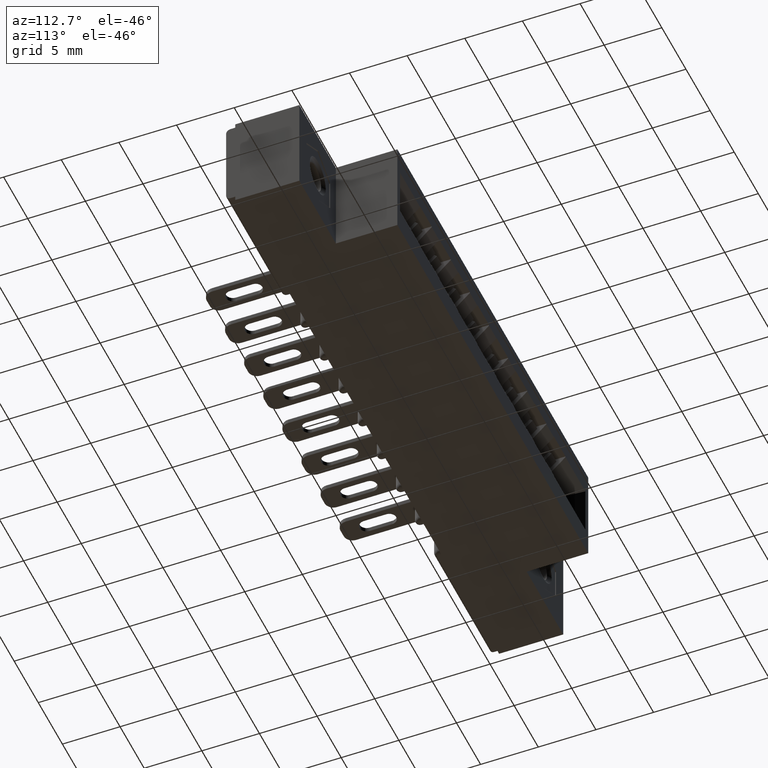
[diagram: clean part render]
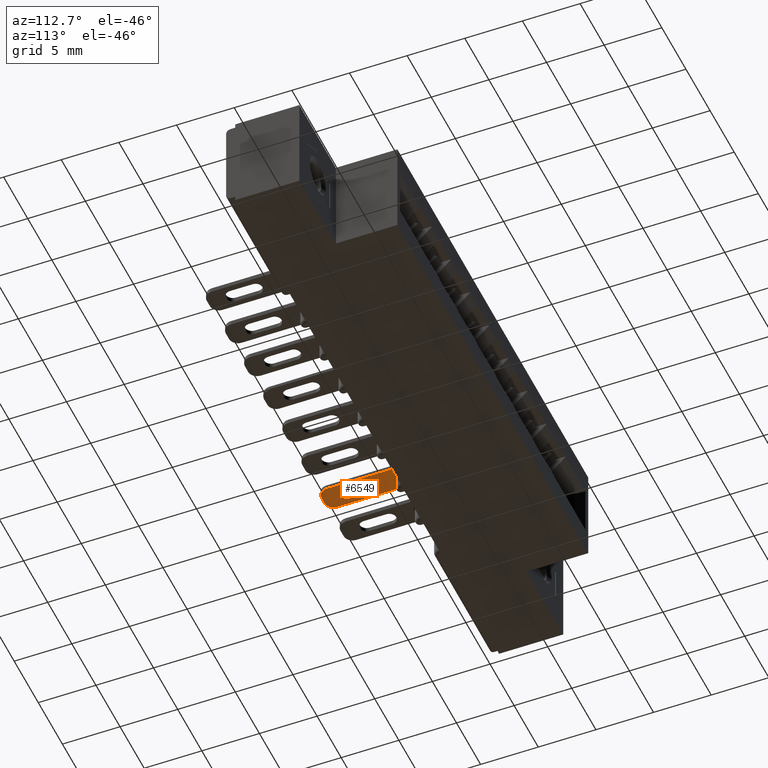
[diagram: same view with one face highlighted and labeled with its STEP entity id]
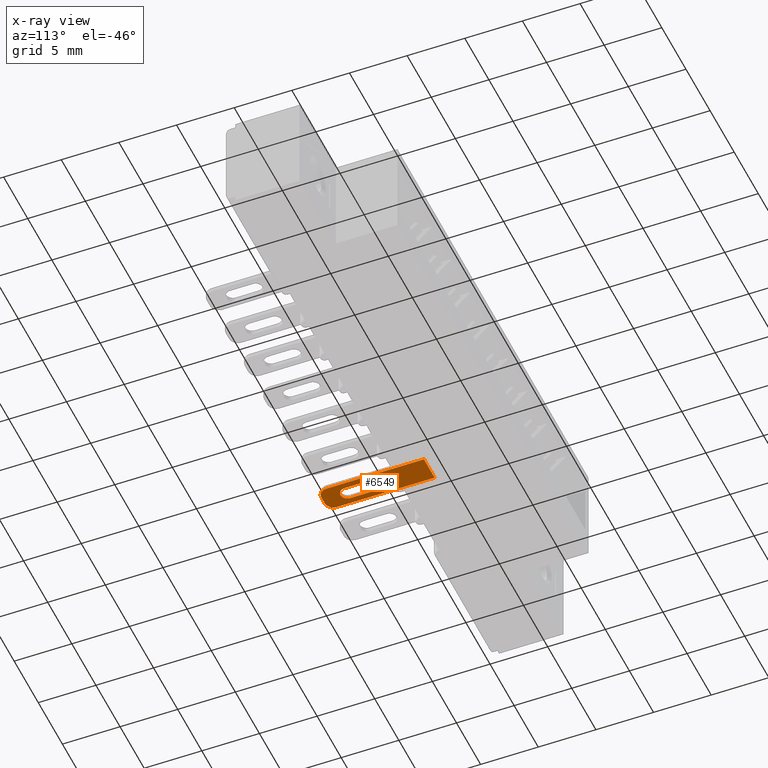
[diagram: x-ray of the same camera — body ghosted, the highlighted face saturated]
A machine part, auxiliary view. The second image highlights one B-rep face of the part: STEP entity #6549.
The next image is the same camera in x-ray: the body ghosted, the highlighted face saturated — about 0% of this face is hidden behind the body in this view.
In plain terms, the highlighted planar face has unit normal (0, 0, 1).
Its self-contained STEP definition (entity closure, byte-faithful):
#107 = LINE ( 'NONE', #8204, #11974 ) ;
#230 = DIRECTION ( 'NONE',  ( 0.0000000000000000000, 1.000000000000000000, 5.276369216312544239E-31 ) ) ;
#309 = AXIS2_PLACEMENT_3D ( 'NONE', #10967, #2993, #9227 ) ;
#467 = VERTEX_POINT ( 'NONE', #9539 ) ;
#493 = DIRECTION ( 'NONE',  ( 0.0000000000000000000, 0.0000000000000000000, 1.000000000000000000 ) ) ;
#712 = LINE ( 'NONE', #8955, #5321 ) ;
#745 = EDGE_LOOP ( 'NONE', ( #4178, #10096, #9016, #4637 ) ) ;
#892 = CIRCLE ( 'NONE', #4521, 0.03000000000000000583 ) ;
#1000 = DIRECTION ( 'NONE',  ( 1.000000000000000000, -0.0000000000000000000, 1.895115065277040079E-29 ) ) ;
#1145 = EDGE_CURVE ( 'NONE', #9052, #7901, #1896, .T. ) ;
#1230 = CARTESIAN_POINT ( 'NONE',  ( 0.007499999999995753987, -0.2014999999999999847, 0.02350000000000044761 ) ) ;
#1516 = AXIS2_PLACEMENT_3D ( 'NONE', #2870, #1000, #11037 ) ;
#1543 = CARTESIAN_POINT ( 'NONE',  ( 0.007500000000001900979, -0.3329999999999999627, 0.01349999999999918626 ) ) ;
#1622 = VERTEX_POINT ( 'NONE', #4269 ) ;
#1797 = ORIENTED_EDGE ( 'NONE', *, *, #1145, .T. ) ;
#1846 = ORIENTED_EDGE ( 'NONE', *, *, #10186, .F. ) ;
#1896 = LINE ( 'NONE', #2967, #4721 ) ;
#1937 = CARTESIAN_POINT ( 'NONE',  ( 0.007500000000005589001, -0.3629999999999999338, -0.02350000000000044761 ) ) ;
#2102 = CARTESIAN_POINT ( 'NONE',  ( 0.007500000000001900979, -0.3329999999999999627, -0.04350000000000078110 ) ) ;
#2260 = VERTEX_POINT ( 'NONE', #13079 ) ;
#2429 = VECTOR ( 'NONE', #6000, 39.37007874015748143 ) ;
#2546 = CARTESIAN_POINT ( 'NONE',  ( 0.007499999999995720160, -0.2014999999999999847, 0.0000000000000000000 ) ) ;
#2554 = DIRECTION ( 'NONE',  ( 1.000000000000000000, -0.0000000000000000000, 1.895115065277040079E-29 ) ) ;
#2870 = CARTESIAN_POINT ( 'NONE',  ( 0.007500000000001900979, -0.3329999999999999627, -0.01349999999999918626 ) ) ;
#2967 = CARTESIAN_POINT ( 'NONE',  ( 0.007500000000000056968, 0.0000000000000000000, -0.04350000000000078110 ) ) ;
#2978 = EDGE_CURVE ( 'NONE', #4888, #7744, #712, .T. ) ;
#2993 = DIRECTION ( 'NONE',  ( -1.000000000000000000, 1.999865358359563015E-59, 1.895115065277040079E-29 ) ) ;
#3173 = ORIENTED_EDGE ( 'NONE', *, *, #7796, .T. ) ;
#3922 = VECTOR ( 'NONE', #4217, 39.37007874015748143 ) ;
#4060 = FACE_OUTER_BOUND ( 'NONE', #7937, .T. ) ;
#4073 = CARTESIAN_POINT ( 'NONE',  ( 0.007500000000005589001, -0.3629999999999999338, -0.04350000000000078110 ) ) ;
#4178 = ORIENTED_EDGE ( 'NONE', *, *, #4227, .F. ) ;
#4217 = DIRECTION ( 'NONE',  ( 0.0000000000000000000, 1.000000000000000000, 1.094490382077028799E-16 ) ) ;
#4227 = EDGE_CURVE ( 'NONE', #467, #4888, #12448, .T. ) ;
#4269 = CARTESIAN_POINT ( 'NONE',  ( 0.007500000000001900979, -0.3329999999999999627, 0.04350000000000078110 ) ) ;
#4354 = EDGE_CURVE ( 'NONE', #4967, #2260, #7092, .T. ) ;
#4521 = AXIS2_PLACEMENT_3D ( 'NONE', #1543, #2554, #9786 ) ;
#4637 = ORIENTED_EDGE ( 'NONE', *, *, #2978, .F. ) ;
#4721 = VECTOR ( 'NONE', #10067, 39.37007874015748143 ) ;
#4888 = VERTEX_POINT ( 'NONE', #1230 ) ;
#4967 = VERTEX_POINT ( 'NONE', #8474 ) ;
#5027 = DIRECTION ( 'NONE',  ( 1.895115065277040079E-29, 5.276369216312493442E-31, 1.000000000000000000 ) ) ;
#5073 = LINE ( 'NONE', #11091, #2429 ) ;
#5246 = ORIENTED_EDGE ( 'NONE', *, *, #7053, .T. ) ;
#5321 = VECTOR ( 'NONE', #11761, 39.37007874015748143 ) ;
#5546 = EDGE_CURVE ( 'NONE', #7744, #12951, #11855, .T. ) ;
#6000 = DIRECTION ( 'NONE',  ( 0.0000000000000000000, 1.000000000000000000, 5.276369216312544239E-31 ) ) ;
#6206 = CIRCLE ( 'NONE', #1516, 0.02999999999999999889 ) ;
#6464 = ORIENTED_EDGE ( 'NONE', *, *, #8934, .T. ) ;
#6549 = ADVANCED_FACE ( 'NONE', ( #4060, #8149 ), #9024, .F. ) ;
#7053 = EDGE_CURVE ( 'NONE', #9496, #9052, #107, .T. ) ;
#7092 = LINE ( 'NONE', #4073, #9657 ) ;
#7744 = VERTEX_POINT ( 'NONE', #10841 ) ;
#7796 = EDGE_CURVE ( 'NONE', #4967, #9496, #6206, .T. ) ;
#7901 = VERTEX_POINT ( 'NONE', #11498 ) ;
#7937 = EDGE_LOOP ( 'NONE', ( #8536, #3173, #5246, #1797, #1846, #6464 ) ) ;
#8149 = FACE_BOUND ( 'NONE', #745, .T. ) ;
#8204 = CARTESIAN_POINT ( 'NONE',  ( 0.007500000000005589001, -0.3629999999999999338, -0.04350000000000078110 ) ) ;
#8474 = CARTESIAN_POINT ( 'NONE',  ( 0.007500000000005589001, -0.3629999999999999338, -0.01349999999999918626 ) ) ;
#8536 = ORIENTED_EDGE ( 'NONE', *, *, #4354, .F. ) ;
#8934 = EDGE_CURVE ( 'NONE', #1622, #2260, #892, .T. ) ;
#8955 = CARTESIAN_POINT ( 'NONE',  ( 0.007500000000005589001, -0.3629999999999999338, 0.02350000000000044761 ) ) ;
#8986 = CARTESIAN_POINT ( 'NONE',  ( 0.007499999999996402773, -0.2794999999999999707, 0.0000000000000000000 ) ) ;
#9016 = ORIENTED_EDGE ( 'NONE', *, *, #5546, .F. ) ;
#9020 = AXIS2_PLACEMENT_3D ( 'NONE', #2546, #11851, #12785 ) ;
#9024 = PLANE ( 'NONE',  #309 ) ;
#9052 = VERTEX_POINT ( 'NONE', #10984 ) ;
#9227 = DIRECTION ( 'NONE',  ( 1.895115065277040079E-29, 5.276369216312493442E-31, 1.000000000000000000 ) ) ;
#9319 = LINE ( 'NONE', #1937, #3922 ) ;
#9496 = VERTEX_POINT ( 'NONE', #2102 ) ;
#9539 = CARTESIAN_POINT ( 'NONE',  ( 0.007499999999995753987, -0.2014999999999999847, -0.02350000000000044761 ) ) ;
#9657 = VECTOR ( 'NONE', #5027, 39.37007874015748143 ) ;
#9786 = DIRECTION ( 'NONE',  ( 0.0000000000000000000, 0.0000000000000000000, 1.000000000000000000 ) ) ;
#10067 = DIRECTION ( 'NONE',  ( 1.895115065277040079E-29, 5.276369216312493442E-31, 1.000000000000000000 ) ) ;
#10096 = ORIENTED_EDGE ( 'NONE', *, *, #11646, .F. ) ;
#10122 = CARTESIAN_POINT ( 'NONE',  ( 0.007499999999996368946, -0.2794999999999999707, -0.02350000000000044761 ) ) ;
#10186 = EDGE_CURVE ( 'NONE', #1622, #7901, #5073, .T. ) ;
#10369 = AXIS2_PLACEMENT_3D ( 'NONE', #8986, #13066, #493 ) ;
#10841 = CARTESIAN_POINT ( 'NONE',  ( 0.007499999999996436600, -0.2794999999999999707, 0.02350000000000044761 ) ) ;
#10967 = CARTESIAN_POINT ( 'NONE',  ( 0.007500000000005589001, -0.3629999999999999338, -0.04350000000000078110 ) ) ;
#10984 = CARTESIAN_POINT ( 'NONE',  ( 0.007500000000000056968, 0.0000000000000000000, -0.04350000000000078110 ) ) ;
#11037 = DIRECTION ( 'NONE',  ( 0.0000000000000000000, 0.0000000000000000000, 1.000000000000000000 ) ) ;
#11091 = CARTESIAN_POINT ( 'NONE',  ( 0.007500000000005589001, -0.3629999999999999338, 0.04350000000000078110 ) ) ;
#11498 = CARTESIAN_POINT ( 'NONE',  ( 0.007499999999998212957, 0.0000000000000000000, 0.04350000000000078110 ) ) ;
#11646 = EDGE_CURVE ( 'NONE', #12951, #467, #9319, .T. ) ;
#11761 = DIRECTION ( 'NONE',  ( 0.0000000000000000000, -1.000000000000000000, -1.094490382077028799E-16 ) ) ;
#11851 = DIRECTION ( 'NONE',  ( 1.000000000000000000, -0.0000000000000000000, 1.895115065277040079E-29 ) ) ;
#11855 = CIRCLE ( 'NONE', #10369, 0.02350000000000000352 ) ;
#11974 = VECTOR ( 'NONE', #230, 39.37007874015748143 ) ;
#12448 = CIRCLE ( 'NONE', #9020, 0.02350000000000000352 ) ;
#12785 = DIRECTION ( 'NONE',  ( 0.0000000000000000000, 0.0000000000000000000, 1.000000000000000000 ) ) ;
#12951 = VERTEX_POINT ( 'NONE', #10122 ) ;
#13066 = DIRECTION ( 'NONE',  ( 1.000000000000000000, -0.0000000000000000000, 1.895115065277040079E-29 ) ) ;
#13079 = CARTESIAN_POINT ( 'NONE',  ( 0.007500000000005589001, -0.3629999999999999338, 0.01349999999999918626 ) ) ;